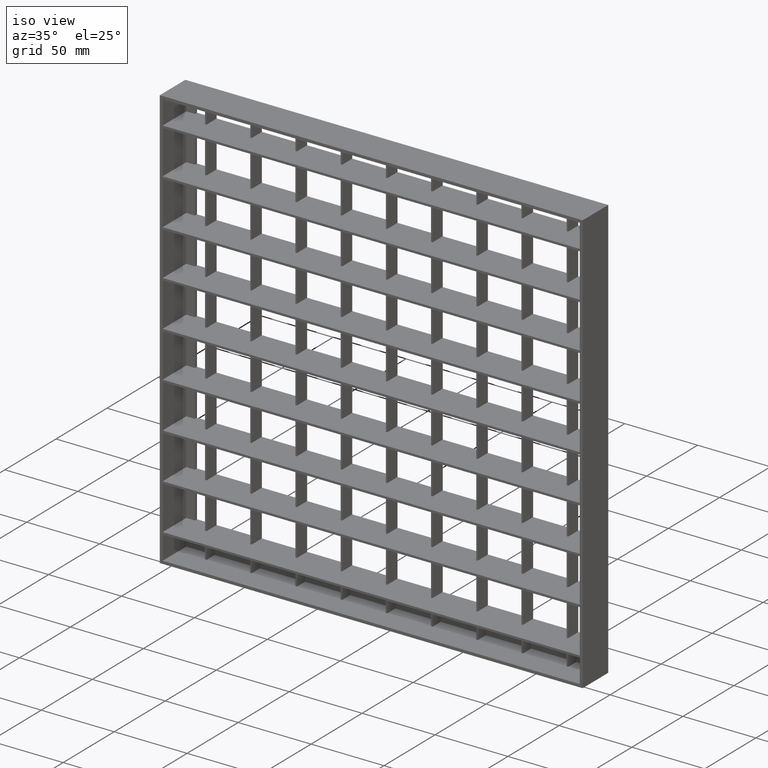
[diagram: clean part render]
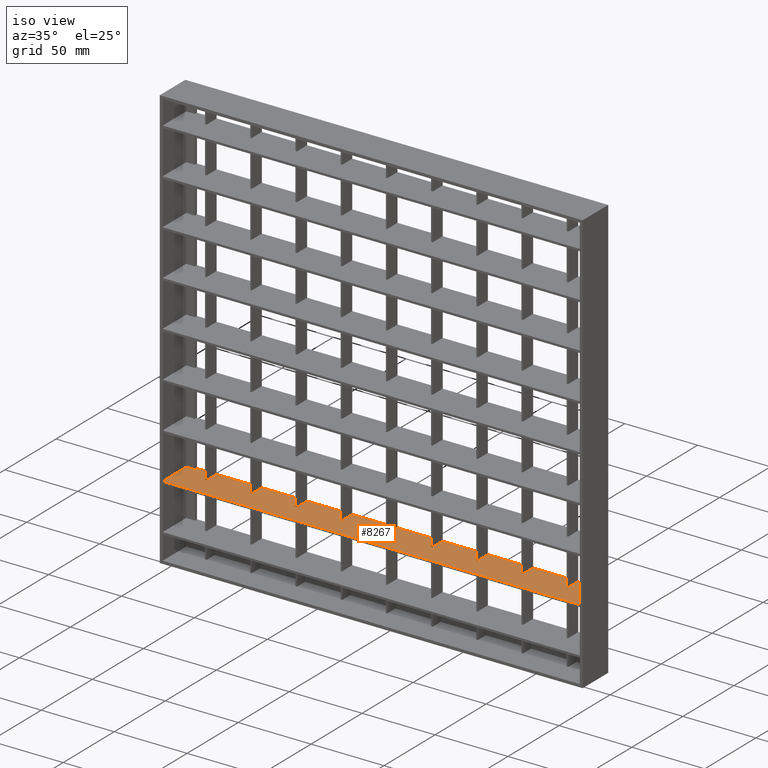
[diagram: same view with one face highlighted and labeled with its STEP entity id]
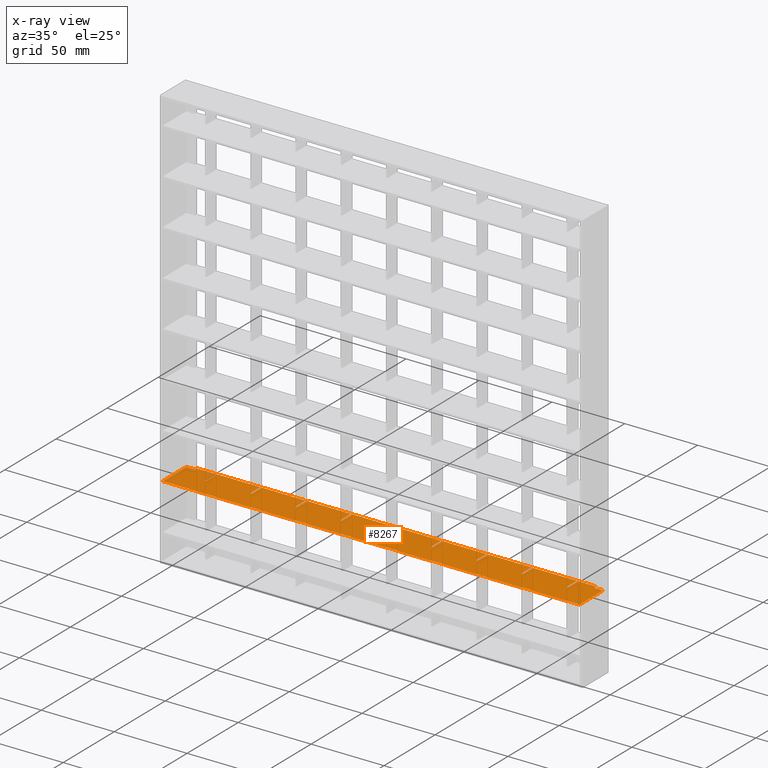
[diagram: x-ray of the same camera — body ghosted, the highlighted face saturated]
A machine part, iso view. The second image highlights one B-rep face of the part: STEP entity #8267.
The next image is the same camera in x-ray: the body ghosted, the highlighted face saturated — about 0% of this face is hidden behind the body in this view.
In plain terms, the highlighted planar face has unit normal (0, 0, -1).
Its self-contained STEP definition (entity closure, byte-faithful):
#64 = ORIENTED_EDGE ( 'NONE', *, *, #8978, .T. ) ;
#104 = DIRECTION ( 'NONE',  ( -1.000000000000000000, -4.336808689942014300E-016, 0.0000000000000000000 ) ) ;
#105 = VERTEX_POINT ( 'NONE', #1149 ) ;
#128 = DIRECTION ( 'NONE',  ( 0.0000000000000000000, -1.000000000000000000, 0.0000000000000000000 ) ) ;
#165 = VERTEX_POINT ( 'NONE', #8369 ) ;
#200 = VERTEX_POINT ( 'NONE', #13305 ) ;
#221 = DIRECTION ( 'NONE',  ( 8.673617379884035500E-016, -1.000000000000000000, 0.0000000000000000000 ) ) ;
#263 = VERTEX_POINT ( 'NONE', #9714 ) ;
#334 = ORIENTED_EDGE ( 'NONE', *, *, #12524, .F. ) ;
#378 = DIRECTION ( 'NONE',  ( -1.000000000000000000, -3.061616997868382600E-016, 0.0000000000000000000 ) ) ;
#400 = LINE ( 'NONE', #10715, #13838 ) ;
#456 = CARTESIAN_POINT ( 'NONE',  ( 2.000000000000002700, -12.50000000000000000, -238.7499999999997200 ) ) ;
#487 = VERTEX_POINT ( 'NONE', #7725 ) ;
#493 = DIRECTION ( 'NONE',  ( 0.0000000000000000000, 1.000000000000000000, 0.0000000000000000000 ) ) ;
#519 = VECTOR ( 'NONE', #14663, 1000.000000000000000 ) ;
#539 = LINE ( 'NONE', #3820, #723 ) ;
#545 = EDGE_CURVE ( 'NONE', #8141, #1038, #5117, .T. ) ;
#598 = CARTESIAN_POINT ( 'NONE',  ( 176.5000000000001100, 12.50000000000008200, -238.7499999999996900 ) ) ;
#685 = DIRECTION ( 'NONE',  ( 0.0000000000000000000, 1.000000000000000000, 0.0000000000000000000 ) ) ;
#723 = VECTOR ( 'NONE', #5018, 1000.000000000000000 ) ;
#738 = VECTOR ( 'NONE', #6129, 1000.000000000000000 ) ;
#755 = ORIENTED_EDGE ( 'NONE', *, *, #7063, .T. ) ;
#844 = LINE ( 'NONE', #6459, #6643 ) ;
#940 = CARTESIAN_POINT ( 'NONE',  ( 268.5000000000001100, -12.49999999999987700, -238.7499999999996900 ) ) ;
#995 = CARTESIAN_POINT ( 'NONE',  ( 313.0449595727363300, 2.500000000000075100, -238.7499999999996900 ) ) ;
#996 = DIRECTION ( 'NONE',  ( -1.000000000000000000, -3.061616997868382600E-016, 0.0000000000000000000 ) ) ;
#1028 = CARTESIAN_POINT ( 'NONE',  ( 21.49999999999996400, 12.50000000000003600, -238.7499999999996900 ) ) ;
#1038 = VERTEX_POINT ( 'NONE', #13929 ) ;
#1149 = CARTESIAN_POINT ( 'NONE',  ( 82.49999999999995700, 2.500000000000000900, -238.7499999999996900 ) ) ;
#1297 = ORIENTED_EDGE ( 'NONE', *, *, #11434, .F. ) ;
#1302 = ORIENTED_EDGE ( 'NONE', *, *, #9888, .F. ) ;
#1361 = VERTEX_POINT ( 'NONE', #10086 ) ;
#1406 = LINE ( 'NONE', #15493, #12972 ) ;
#1446 = CARTESIAN_POINT ( 'NONE',  ( 21.49999999999996400, -12.49999999999987700, -238.7499999999996900 ) ) ;
#1467 = VECTOR ( 'NONE', #2571, 1000.000000000000000 ) ;
#1477 = CARTESIAN_POINT ( 'NONE',  ( 313.0449595727363300, 12.50000000000012400, -238.7499999999996900 ) ) ;
#1484 = ORIENTED_EDGE ( 'NONE', *, *, #2595, .T. ) ;
#1485 = VECTOR ( 'NONE', #11626, 1000.000000000000000 ) ;
#1513 = CARTESIAN_POINT ( 'NONE',  ( 313.0449595727363300, 2.499999999999955600, -238.7499999999996900 ) ) ;
#1572 = ORIENTED_EDGE ( 'NONE', *, *, #5763, .F. ) ;
#1628 = VERTEX_POINT ( 'NONE', #15328 ) ;
#1693 = CARTESIAN_POINT ( 'NONE',  ( 7.999999999999992900, 10.50000000000000500, -238.7499999999996900 ) ) ;
#1772 = CARTESIAN_POINT ( 'NONE',  ( 8.000000000000007100, 12.50000000000003000, -238.7499999999996900 ) ) ;
#1795 = DIRECTION ( 'NONE',  ( 8.673617379884037400E-016, 1.000000000000000000, 0.0000000000000000000 ) ) ;
#1842 = LINE ( 'NONE', #1513, #1467 ) ;
#1966 = ORIENTED_EDGE ( 'NONE', *, *, #6527, .F. ) ;
#2019 = LINE ( 'NONE', #15340, #7251 ) ;
#2073 = DIRECTION ( 'NONE',  ( 0.0000000000000000000, 1.000000000000000000, 0.0000000000000000000 ) ) ;
#2158 = LINE ( 'NONE', #14911, #7957 ) ;
#2257 = LINE ( 'NONE', #9845, #738 ) ;
#2287 = ORIENTED_EDGE ( 'NONE', *, *, #12337, .T. ) ;
#2311 = CARTESIAN_POINT ( 'NONE',  ( 313.0449595727363300, 2.500000000000128800, -238.7499999999996900 ) ) ;
#2388 = ORIENTED_EDGE ( 'NONE', *, *, #13463, .T. ) ;
#2471 = DIRECTION ( 'NONE',  ( 0.0000000000000000000, 1.000000000000000000, 0.0000000000000000000 ) ) ;
#2547 = CARTESIAN_POINT ( 'NONE',  ( 206.5000000000001100, -12.49999999999987700, -238.7499999999996900 ) ) ;
#2571 = DIRECTION ( 'NONE',  ( 1.000000000000000000, -4.336808689942014300E-016, 0.0000000000000000000 ) ) ;
#2595 = EDGE_CURVE ( 'NONE', #7277, #263, #3378, .T. ) ;
#2632 = AXIS2_PLACEMENT_3D ( 'NONE', #6768, #12601, #5531 ) ;
#2637 = LINE ( 'NONE', #2957, #7862 ) ;
#2644 = VERTEX_POINT ( 'NONE', #12888 ) ;
#2806 = EDGE_CURVE ( 'NONE', #13791, #12817, #3279, .T. ) ;
#2882 = EDGE_CURVE ( 'NONE', #1628, #14320, #400, .T. ) ;
#2957 = CARTESIAN_POINT ( 'NONE',  ( 82.49999999999995700, -12.49999999999987700, -238.7499999999996900 ) ) ;
#2992 = CARTESIAN_POINT ( 'NONE',  ( 313.0449595727363300, 12.50000000000012400, -238.7499999999996900 ) ) ;
#3025 = LINE ( 'NONE', #1446, #8628 ) ;
#3136 = CARTESIAN_POINT ( 'NONE',  ( 114.4999999999999600, 12.50000000000006400, -238.7499999999996900 ) ) ;
#3186 = CARTESIAN_POINT ( 'NONE',  ( 237.5000000000001400, 2.500000000000002200, -238.7499999999996900 ) ) ;
#3211 = VERTEX_POINT ( 'NONE', #1772 ) ;
#3279 = LINE ( 'NONE', #9627, #12405 ) ;
#3281 = LINE ( 'NONE', #995, #12783 ) ;
#3327 = LINE ( 'NONE', #14775, #519 ) ;
#3344 = ORIENTED_EDGE ( 'NONE', *, *, #9768, .F. ) ;
#3356 = ORIENTED_EDGE ( 'NONE', *, *, #10378, .F. ) ;
#3378 = LINE ( 'NONE', #5824, #13074 ) ;
#3499 = VECTOR ( 'NONE', #14091, 1000.000000000000000 ) ;
#3548 = EDGE_CURVE ( 'NONE', #165, #12351, #12520, .T. ) ;
#3683 = VERTEX_POINT ( 'NONE', #10689 ) ;
#3690 = EDGE_CURVE ( 'NONE', #3683, #9844, #14612, .T. ) ;
#3732 = ORIENTED_EDGE ( 'NONE', *, *, #11945, .T. ) ;
#3803 = EDGE_CURVE ( 'NONE', #11843, #5564, #8997, .T. ) ;
#3820 = CARTESIAN_POINT ( 'NONE',  ( 2.000000000000002700, -12.50000000000000000, -238.7499999999996900 ) ) ;
#3850 = ORIENTED_EDGE ( 'NONE', *, *, #8284, .T. ) ;
#3870 = EDGE_CURVE ( 'NONE', #105, #165, #2637, .T. ) ;
#3895 = CARTESIAN_POINT ( 'NONE',  ( 313.0449595727363300, 12.50000000000012400, -238.7499999999996900 ) ) ;
#4060 = LINE ( 'NONE', #12948, #9487 ) ;
#4089 = DIRECTION ( 'NONE',  ( -1.000000000000000000, -3.061616997868382600E-016, 0.0000000000000000000 ) ) ;
#4213 = EDGE_CURVE ( 'NONE', #7277, #7131, #10842, .T. ) ;
#4290 = VERTEX_POINT ( 'NONE', #15290 ) ;
#4335 = DIRECTION ( 'NONE',  ( -1.000000000000000000, -3.061616997868382600E-016, 0.0000000000000000000 ) ) ;
#4340 = CARTESIAN_POINT ( 'NONE',  ( 313.0449595727363300, 2.500000000000088800, -238.7499999999996900 ) ) ;
#4361 = ORIENTED_EDGE ( 'NONE', *, *, #4213, .F. ) ;
#4386 = CARTESIAN_POINT ( 'NONE',  ( 2.000000000000002700, 10.50000000000000500, -238.7499999999996900 ) ) ;
#4423 = EDGE_CURVE ( 'NONE', #13172, #487, #4683, .T. ) ;
#4643 = CARTESIAN_POINT ( 'NONE',  ( 237.5000000000001400, 12.50000000000010100, -238.7499999999996900 ) ) ;
#4647 = DIRECTION ( 'NONE',  ( -1.000000000000000000, -3.061616997868382600E-016, 0.0000000000000000000 ) ) ;
#4660 = VECTOR ( 'NONE', #9634, 1000.000000000000000 ) ;
#4672 = EDGE_CURVE ( 'NONE', #12624, #2644, #1842, .T. ) ;
#4683 = LINE ( 'NONE', #8269, #8781 ) ;
#4731 = VERTEX_POINT ( 'NONE', #14723 ) ;
#4746 = ORIENTED_EDGE ( 'NONE', *, *, #10562, .F. ) ;
#4756 = EDGE_CURVE ( 'NONE', #1361, #105, #3327, .T. ) ;
#4769 = CARTESIAN_POINT ( 'NONE',  ( 288.0000000000000000, -12.49999999999997300, -238.7499999999996900 ) ) ;
#4876 = VERTEX_POINT ( 'NONE', #5852 ) ;
#4943 = EDGE_CURVE ( 'NONE', #13418, #11609, #2019, .T. ) ;
#4973 = LINE ( 'NONE', #4340, #6437 ) ;
#5018 = DIRECTION ( 'NONE',  ( 0.0000000000000000000, 1.000000000000000000, 0.0000000000000000000 ) ) ;
#5027 = ORIENTED_EDGE ( 'NONE', *, *, #10372, .T. ) ;
#5043 = VECTOR ( 'NONE', #12843, 1000.000000000000000 ) ;
#5074 = DIRECTION ( 'NONE',  ( -1.000000000000000000, -3.061616997868382600E-016, 0.0000000000000000000 ) ) ;
#5080 = VECTOR ( 'NONE', #14923, 1000.000000000000000 ) ;
#5117 = LINE ( 'NONE', #13913, #6604 ) ;
#5154 = ORIENTED_EDGE ( 'NONE', *, *, #15021, .T. ) ;
#5165 = VERTEX_POINT ( 'NONE', #14739 ) ;
#5241 = VERTEX_POINT ( 'NONE', #456 ) ;
#5314 = VECTOR ( 'NONE', #7620, 1000.000000000000000 ) ;
#5332 = VECTOR ( 'NONE', #5074, 1000.000000000000000 ) ;
#5383 = DIRECTION ( 'NONE',  ( 0.0000000000000000000, -1.000000000000000000, 0.0000000000000000000 ) ) ;
#5437 = LINE ( 'NONE', #7605, #9176 ) ;
#5531 = DIRECTION ( 'NONE',  ( -1.000000000000000000, 0.0000000000000000000, -0.0000000000000000000 ) ) ;
#5564 = VERTEX_POINT ( 'NONE', #1028 ) ;
#5647 = VERTEX_POINT ( 'NONE', #15368 ) ;
#5762 = VERTEX_POINT ( 'NONE', #8545 ) ;
#5763 = EDGE_CURVE ( 'NONE', #4731, #12624, #12440, .T. ) ;
#5802 = DIRECTION ( 'NONE',  ( -1.000000000000000000, -4.336808689942014300E-016, 0.0000000000000000000 ) ) ;
#5824 = CARTESIAN_POINT ( 'NONE',  ( 313.0449595727363300, 12.50000000000012400, -238.7499999999996900 ) ) ;
#5852 = CARTESIAN_POINT ( 'NONE',  ( 20.49999999999996400, 12.50000000000000200, -238.7499999999996900 ) ) ;
#5905 = CARTESIAN_POINT ( 'NONE',  ( 207.5000000000001400, 12.50000000000009100, -238.7499999999996900 ) ) ;
#5934 = CARTESIAN_POINT ( 'NONE',  ( 145.4999999999999700, 2.500000000000002200, -238.7499999999996900 ) ) ;
#6005 = LINE ( 'NONE', #13390, #12149 ) ;
#6038 = VERTEX_POINT ( 'NONE', #7758 ) ;
#6088 = CARTESIAN_POINT ( 'NONE',  ( 176.5000000000001100, -12.49999999999987700, -238.7499999999996900 ) ) ;
#6129 = DIRECTION ( 'NONE',  ( 1.000000000000000000, -4.336808689942014300E-016, 0.0000000000000000000 ) ) ;
#6174 = EDGE_CURVE ( 'NONE', #6038, #5647, #4060, .T. ) ;
#6437 = VECTOR ( 'NONE', #7839, 1000.000000000000000 ) ;
#6459 = CARTESIAN_POINT ( 'NONE',  ( 52.49999999999993600, -12.49999999999987700, -238.7499999999996900 ) ) ;
#6465 = CARTESIAN_POINT ( 'NONE',  ( 51.49999999999996400, 12.50000000000000200, -238.7499999999996900 ) ) ;
#6527 = EDGE_CURVE ( 'NONE', #13199, #11916, #2158, .T. ) ;
#6554 = CARTESIAN_POINT ( 'NONE',  ( 175.5000000000001100, 12.50000000000008200, -238.7499999999996900 ) ) ;
#6604 = VECTOR ( 'NONE', #9234, 1000.000000000000000 ) ;
#6643 = VECTOR ( 'NONE', #14892, 1000.000000000000000 ) ;
#6656 = ORIENTED_EDGE ( 'NONE', *, *, #10743, .T. ) ;
#6658 = LINE ( 'NONE', #940, #3499 ) ;
#6683 = CARTESIAN_POINT ( 'NONE',  ( 207.5000000000001400, -12.49999999999987700, -238.7499999999996900 ) ) ;
#6688 = ORIENTED_EDGE ( 'NONE', *, *, #545, .T. ) ;
#6737 = VECTOR ( 'NONE', #4647, 1000.000000000000000 ) ;
#6768 = CARTESIAN_POINT ( 'NONE',  ( 313.0449595727363300, -12.49999999999987700, -238.7499999999996900 ) ) ;
#6945 = VERTEX_POINT ( 'NONE', #13302 ) ;
#6946 = VECTOR ( 'NONE', #1795, 1000.000000000000000 ) ;
#7063 = EDGE_CURVE ( 'NONE', #263, #13340, #8323, .T. ) ;
#7131 = VERTEX_POINT ( 'NONE', #14571 ) ;
#7164 = DIRECTION ( 'NONE',  ( 0.0000000000000000000, -1.000000000000000000, 0.0000000000000000000 ) ) ;
#7191 = LINE ( 'NONE', #9136, #13907 ) ;
#7251 = VECTOR ( 'NONE', #996, 1000.000000000000000 ) ;
#7277 = VERTEX_POINT ( 'NONE', #6554 ) ;
#7329 = ORIENTED_EDGE ( 'NONE', *, *, #11077, .F. ) ;
#7436 = DIRECTION ( 'NONE',  ( -1.000000000000000000, -3.061616997868382600E-016, 0.0000000000000000000 ) ) ;
#7495 = ORIENTED_EDGE ( 'NONE', *, *, #11776, .F. ) ;
#7605 = CARTESIAN_POINT ( 'NONE',  ( 313.0449595727363300, 12.50000000000012400, -238.7499999999996900 ) ) ;
#7620 = DIRECTION ( 'NONE',  ( 0.0000000000000000000, -1.000000000000000000, 0.0000000000000000000 ) ) ;
#7703 = ORIENTED_EDGE ( 'NONE', *, *, #2806, .T. ) ;
#7725 = CARTESIAN_POINT ( 'NONE',  ( 238.5000000000001700, 12.50000000000010100, -238.7499999999996900 ) ) ;
#7754 = FACE_OUTER_BOUND ( 'NONE', #12838, .T. ) ;
#7758 = CARTESIAN_POINT ( 'NONE',  ( 269.5000000000000600, 2.500000000000002200, -238.7499999999996900 ) ) ;
#7837 = ORIENTED_EDGE ( 'NONE', *, *, #4943, .T. ) ;
#7839 = DIRECTION ( 'NONE',  ( -1.000000000000000000, -4.336808689942014300E-016, 0.0000000000000000000 ) ) ;
#7862 = VECTOR ( 'NONE', #493, 1000.000000000000000 ) ;
#7868 = LINE ( 'NONE', #2992, #5080 ) ;
#7901 = VERTEX_POINT ( 'NONE', #4769 ) ;
#7927 = CARTESIAN_POINT ( 'NONE',  ( 282.0000000000000000, 10.50000000000000500, -238.7499999999996900 ) ) ;
#7957 = VECTOR ( 'NONE', #11271, 1000.000000000000000 ) ;
#7963 = ORIENTED_EDGE ( 'NONE', *, *, #8028, .T. ) ;
#8028 = EDGE_CURVE ( 'NONE', #7901, #11916, #14103, .T. ) ;
#8038 = VERTEX_POINT ( 'NONE', #13476 ) ;
#8079 = VECTOR ( 'NONE', #12485, 1000.000000000000000 ) ;
#8141 = VERTEX_POINT ( 'NONE', #11214 ) ;
#8208 = VERTEX_POINT ( 'NONE', #4386 ) ;
#8223 = LINE ( 'NONE', #9320, #1485 ) ;
#8256 = VECTOR ( 'NONE', #10739, 1000.000000000000000 ) ;
#8267 = ADVANCED_FACE ( 'NONE', ( #7754 ), #13925, .F. ) ;
#8269 = CARTESIAN_POINT ( 'NONE',  ( 238.5000000000001700, -12.49999999999987700, -238.7499999999996900 ) ) ;
#8284 = EDGE_CURVE ( 'NONE', #4876, #3211, #9058, .T. ) ;
#8323 = LINE ( 'NONE', #14674, #5314 ) ;
#8369 = CARTESIAN_POINT ( 'NONE',  ( 82.49999999999995700, 12.50000000000000200, -238.7499999999996900 ) ) ;
#8389 = CARTESIAN_POINT ( 'NONE',  ( 237.5000000000001400, -12.49999999999987700, -238.7499999999996900 ) ) ;
#8516 = VECTOR ( 'NONE', #13365, 1000.000000000000000 ) ;
#8542 = VECTOR ( 'NONE', #11475, 1000.000000000000000 ) ;
#8545 = CARTESIAN_POINT ( 'NONE',  ( 21.49999999999996400, 2.500000000000002200, -238.7499999999996900 ) ) ;
#8589 = VECTOR ( 'NONE', #685, 1000.000000000000000 ) ;
#8596 = DIRECTION ( 'NONE',  ( -1.000000000000000000, -3.061616997868382600E-016, 0.0000000000000000000 ) ) ;
#8612 = CARTESIAN_POINT ( 'NONE',  ( 268.5000000000001100, 12.50000000000011000, -238.7499999999996900 ) ) ;
#8628 = VECTOR ( 'NONE', #14451, 1000.000000000000000 ) ;
#8632 = CARTESIAN_POINT ( 'NONE',  ( 83.49999999999995700, -12.49999999999987700, -238.7499999999996900 ) ) ;
#8781 = VECTOR ( 'NONE', #2471, 1000.000000000000000 ) ;
#8866 = VECTOR ( 'NONE', #11702, 1000.000000000000000 ) ;
#8978 = EDGE_CURVE ( 'NONE', #6945, #8038, #13886, .T. ) ;
#8990 = CARTESIAN_POINT ( 'NONE',  ( 313.0449595727363300, 12.50000000000012400, -238.7499999999996900 ) ) ;
#8991 = LINE ( 'NONE', #3895, #11381 ) ;
#8997 = LINE ( 'NONE', #13501, #11030 ) ;
#9058 = LINE ( 'NONE', #10277, #9999 ) ;
#9067 = DIRECTION ( 'NONE',  ( 1.000000000000000000, -4.336808689942014300E-016, 0.0000000000000000000 ) ) ;
#9117 = LINE ( 'NONE', #8632, #10610 ) ;
#9136 = CARTESIAN_POINT ( 'NONE',  ( 20.49999999999996400, -12.49999999999987700, -238.7499999999996900 ) ) ;
#9173 = CARTESIAN_POINT ( 'NONE',  ( 144.4999999999999700, -12.49999999999987700, -238.7499999999996900 ) ) ;
#9176 = VECTOR ( 'NONE', #378, 1000.000000000000000 ) ;
#9204 = ORIENTED_EDGE ( 'NONE', *, *, #13089, .T. ) ;
#9217 = DIRECTION ( 'NONE',  ( 0.0000000000000000000, 1.000000000000000000, 0.0000000000000000000 ) ) ;
#9234 = DIRECTION ( 'NONE',  ( 0.0000000000000000000, 1.000000000000000000, 0.0000000000000000000 ) ) ;
#9278 = ORIENTED_EDGE ( 'NONE', *, *, #11078, .T. ) ;
#9305 = ORIENTED_EDGE ( 'NONE', *, *, #4423, .F. ) ;
#9320 = CARTESIAN_POINT ( 'NONE',  ( 313.0449595727363300, -12.49999999999987700, -238.7499999999996900 ) ) ;
#9393 = ORIENTED_EDGE ( 'NONE', *, *, #11637, .T. ) ;
#9399 = CARTESIAN_POINT ( 'NONE',  ( 313.0449595727363300, 12.50000000000012400, -238.7499999999996900 ) ) ;
#9487 = VECTOR ( 'NONE', #9217, 1000.000000000000000 ) ;
#9627 = CARTESIAN_POINT ( 'NONE',  ( 114.4999999999999600, -12.49999999999987700, -238.7499999999996900 ) ) ;
#9634 = DIRECTION ( 'NONE',  ( 0.0000000000000000000, -1.000000000000000000, 0.0000000000000000000 ) ) ;
#9635 = EDGE_CURVE ( 'NONE', #5564, #5762, #3025, .T. ) ;
#9714 = CARTESIAN_POINT ( 'NONE',  ( 145.4999999999999700, 12.50000000000007100, -238.7499999999996900 ) ) ;
#9768 = EDGE_CURVE ( 'NONE', #8208, #10544, #14428, .T. ) ;
#9844 = VERTEX_POINT ( 'NONE', #598 ) ;
#9845 = CARTESIAN_POINT ( 'NONE',  ( 313.0449595727363300, 2.499999999999969400, -238.7499999999996900 ) ) ;
#9888 = EDGE_CURVE ( 'NONE', #5165, #6038, #9930, .T. ) ;
#9930 = LINE ( 'NONE', #13709, #11219 ) ;
#9999 = VECTOR ( 'NONE', #4335, 1000.000000000000000 ) ;
#10009 = CARTESIAN_POINT ( 'NONE',  ( 7.999999999999992900, 10.50000000000000500, -238.7499999999996900 ) ) ;
#10066 = CARTESIAN_POINT ( 'NONE',  ( 2.000000000000002700, 10.50000000000000500, -238.7499999999996900 ) ) ;
#10085 = ORIENTED_EDGE ( 'NONE', *, *, #15537, .T. ) ;
#10086 = CARTESIAN_POINT ( 'NONE',  ( 83.49999999999995700, 2.500000000000002200, -238.7499999999996900 ) ) ;
#10105 = ORIENTED_EDGE ( 'NONE', *, *, #3803, .T. ) ;
#10218 = LINE ( 'NONE', #10395, #8542 ) ;
#10277 = CARTESIAN_POINT ( 'NONE',  ( 313.0449595727363300, 12.50000000000012400, -238.7499999999996900 ) ) ;
#10371 = CARTESIAN_POINT ( 'NONE',  ( 238.5000000000001700, 2.500000000000001800, -238.7499999999996900 ) ) ;
#10372 = EDGE_CURVE ( 'NONE', #8038, #13791, #7868, .T. ) ;
#10378 = EDGE_CURVE ( 'NONE', #10544, #3211, #14232, .T. ) ;
#10395 = CARTESIAN_POINT ( 'NONE',  ( 313.0449595727363300, 2.499999999999943200, -238.7499999999996900 ) ) ;
#10544 = VERTEX_POINT ( 'NONE', #10009 ) ;
#10562 = EDGE_CURVE ( 'NONE', #4290, #13199, #6005, .T. ) ;
#10610 = VECTOR ( 'NONE', #5383, 1000.000000000000000 ) ;
#10689 = CARTESIAN_POINT ( 'NONE',  ( 176.5000000000001100, 2.500000000000002700, -238.7499999999996900 ) ) ;
#10715 = CARTESIAN_POINT ( 'NONE',  ( 313.0449595727363300, 2.500000000000115000, -238.7499999999996900 ) ) ;
#10739 = DIRECTION ( 'NONE',  ( 0.0000000000000000000, 1.000000000000000000, 0.0000000000000000000 ) ) ;
#10743 = EDGE_CURVE ( 'NONE', #4290, #5647, #5437, .T. ) ;
#10842 = LINE ( 'NONE', #15407, #5043 ) ;
#10935 = ORIENTED_EDGE ( 'NONE', *, *, #11462, .F. ) ;
#11030 = VECTOR ( 'NONE', #8596, 1000.000000000000000 ) ;
#11077 = EDGE_CURVE ( 'NONE', #13797, #13172, #2257, .T. ) ;
#11078 = EDGE_CURVE ( 'NONE', #1038, #14158, #8991, .T. ) ;
#11096 = CARTESIAN_POINT ( 'NONE',  ( 83.49999999999995700, 12.50000000000005300, -238.7499999999996900 ) ) ;
#11126 = ORIENTED_EDGE ( 'NONE', *, *, #12658, .F. ) ;
#11194 = LINE ( 'NONE', #6683, #8589 ) ;
#11206 = CARTESIAN_POINT ( 'NONE',  ( 287.9999999999999400, 10.50000000000000500, -238.7499999999996900 ) ) ;
#11214 = CARTESIAN_POINT ( 'NONE',  ( 113.4999999999999600, 2.500000000000002200, -238.7499999999996900 ) ) ;
#11219 = VECTOR ( 'NONE', #9067, 1000.000000000000000 ) ;
#11228 = ORIENTED_EDGE ( 'NONE', *, *, #4756, .T. ) ;
#11271 = DIRECTION ( 'NONE',  ( 1.000000000000000000, 0.0000000000000000000, 0.0000000000000000000 ) ) ;
#11332 = ORIENTED_EDGE ( 'NONE', *, *, #2882, .T. ) ;
#11351 = LINE ( 'NONE', #8389, #4660 ) ;
#11373 = CARTESIAN_POINT ( 'NONE',  ( 52.49999999999999300, 12.50000000000004400, -238.7499999999996900 ) ) ;
#11381 = VECTOR ( 'NONE', #7436, 1000.000000000000000 ) ;
#11434 = EDGE_CURVE ( 'NONE', #2644, #11609, #11194, .T. ) ;
#11462 = EDGE_CURVE ( 'NONE', #7901, #5241, #8223, .T. ) ;
#11475 = DIRECTION ( 'NONE',  ( 1.000000000000000000, -4.336808689942014300E-016, 0.0000000000000000000 ) ) ;
#11507 = ORIENTED_EDGE ( 'NONE', *, *, #3870, .T. ) ;
#11609 = VERTEX_POINT ( 'NONE', #5905 ) ;
#11626 = DIRECTION ( 'NONE',  ( -1.000000000000000000, -3.061616997868382600E-016, 0.0000000000000000000 ) ) ;
#11637 = EDGE_CURVE ( 'NONE', #5762, #200, #12475, .T. ) ;
#11678 = DIRECTION ( 'NONE',  ( 0.0000000000000000000, 1.000000000000000000, 0.0000000000000000000 ) ) ;
#11702 = DIRECTION ( 'NONE',  ( 0.0000000000000000000, 1.000000000000000000, 0.0000000000000000000 ) ) ;
#11721 = VECTOR ( 'NONE', #14366, 1000.000000000000000 ) ;
#11776 = EDGE_CURVE ( 'NONE', #5241, #8208, #539, .T. ) ;
#11843 = VERTEX_POINT ( 'NONE', #6465 ) ;
#11916 = VERTEX_POINT ( 'NONE', #11206 ) ;
#11945 = EDGE_CURVE ( 'NONE', #15301, #487, #13790, .T. ) ;
#12139 = EDGE_CURVE ( 'NONE', #13418, #13797, #11351, .T. ) ;
#12149 = VECTOR ( 'NONE', #221, 1000.000000000000000 ) ;
#12281 = ORIENTED_EDGE ( 'NONE', *, *, #13752, .T. ) ;
#12337 = EDGE_CURVE ( 'NONE', #14158, #1361, #9117, .T. ) ;
#12351 = VERTEX_POINT ( 'NONE', #11373 ) ;
#12405 = VECTOR ( 'NONE', #7164, 1000.000000000000000 ) ;
#12440 = LINE ( 'NONE', #2547, #14913 ) ;
#12475 = LINE ( 'NONE', #2311, #11721 ) ;
#12485 = DIRECTION ( 'NONE',  ( 1.000000000000000000, 0.0000000000000000000, 0.0000000000000000000 ) ) ;
#12520 = LINE ( 'NONE', #9399, #6737 ) ;
#12524 = EDGE_CURVE ( 'NONE', #7131, #3683, #10218, .T. ) ;
#12581 = LINE ( 'NONE', #1477, #5332 ) ;
#12601 = DIRECTION ( 'NONE',  ( 0.0000000000000000000, 0.0000000000000000000, -1.000000000000000000 ) ) ;
#12624 = VERTEX_POINT ( 'NONE', #14201 ) ;
#12658 = EDGE_CURVE ( 'NONE', #15301, #5165, #6658, .T. ) ;
#12662 = ORIENTED_EDGE ( 'NONE', *, *, #3690, .F. ) ;
#12783 = VECTOR ( 'NONE', #5802, 1000.000000000000000 ) ;
#12817 = VERTEX_POINT ( 'NONE', #13197 ) ;
#12838 = EDGE_LOOP ( 'NONE', ( #13001, #1302, #11126, #3732, #9305, #7329, #15153, #7837, #1297, #14387, #1572, #2388, #12662, #334, #4361, #1484, #755, #14065, #64, #5027, #7703, #12281, #6688, #9278, #2287, #11228, #11507, #13080, #9204, #11332, #5154, #10105, #13066, #9393, #10085, #3850, #3356, #3344, #7495, #10935, #7963, #1966, #4746, #6656 ) ) ;
#12843 = DIRECTION ( 'NONE',  ( 0.0000000000000000000, -1.000000000000000000, 0.0000000000000000000 ) ) ;
#12888 = CARTESIAN_POINT ( 'NONE',  ( 207.5000000000001400, 2.500000000000001300, -238.7499999999996900 ) ) ;
#12948 = CARTESIAN_POINT ( 'NONE',  ( 269.5000000000001100, -12.49999999999987700, -238.7499999999996900 ) ) ;
#12972 = VECTOR ( 'NONE', #11678, 1000.000000000000000 ) ;
#13001 = ORIENTED_EDGE ( 'NONE', *, *, #6174, .F. ) ;
#13066 = ORIENTED_EDGE ( 'NONE', *, *, #9635, .T. ) ;
#13074 = VECTOR ( 'NONE', #15412, 1000.000000000000000 ) ;
#13080 = ORIENTED_EDGE ( 'NONE', *, *, #3548, .T. ) ;
#13089 = EDGE_CURVE ( 'NONE', #12351, #1628, #844, .T. ) ;
#13172 = VERTEX_POINT ( 'NONE', #10371 ) ;
#13197 = CARTESIAN_POINT ( 'NONE',  ( 114.4999999999999600, 2.500000000000002200, -238.7499999999996900 ) ) ;
#13199 = VERTEX_POINT ( 'NONE', #7927 ) ;
#13302 = CARTESIAN_POINT ( 'NONE',  ( 144.4999999999999700, 2.500000000000001800, -238.7499999999996900 ) ) ;
#13305 = CARTESIAN_POINT ( 'NONE',  ( 20.49999999999996400, 2.500000000000001800, -238.7499999999996900 ) ) ;
#13340 = VERTEX_POINT ( 'NONE', #5934 ) ;
#13365 = DIRECTION ( 'NONE',  ( 0.0000000000000000000, 1.000000000000000000, 0.0000000000000000000 ) ) ;
#13390 = CARTESIAN_POINT ( 'NONE',  ( 282.0000000000000000, 10.50000000000019200, -238.7499999999996900 ) ) ;
#13418 = VERTEX_POINT ( 'NONE', #4643 ) ;
#13463 = EDGE_CURVE ( 'NONE', #4731, #9844, #12581, .T. ) ;
#13476 = CARTESIAN_POINT ( 'NONE',  ( 144.4999999999999700, 12.50000000000000200, -238.7499999999996900 ) ) ;
#13501 = CARTESIAN_POINT ( 'NONE',  ( 313.0449595727363300, 12.50000000000012400, -238.7499999999996900 ) ) ;
#13528 = CARTESIAN_POINT ( 'NONE',  ( 288.0000000000000000, -12.49999999999987700, -238.7499999999996900 ) ) ;
#13709 = CARTESIAN_POINT ( 'NONE',  ( 313.0449595727363300, 2.499999999999983100, -238.7499999999996900 ) ) ;
#13752 = EDGE_CURVE ( 'NONE', #12817, #8141, #4973, .T. ) ;
#13790 = LINE ( 'NONE', #8990, #15512 ) ;
#13791 = VERTEX_POINT ( 'NONE', #3136 ) ;
#13797 = VERTEX_POINT ( 'NONE', #3186 ) ;
#13838 = VECTOR ( 'NONE', #104, 1000.000000000000000 ) ;
#13886 = LINE ( 'NONE', #9173, #8866 ) ;
#13907 = VECTOR ( 'NONE', #2073, 1000.000000000000000 ) ;
#13913 = CARTESIAN_POINT ( 'NONE',  ( 113.4999999999999600, -12.49999999999987700, -238.7499999999996900 ) ) ;
#13925 = PLANE ( 'NONE',  #2632 ) ;
#13929 = CARTESIAN_POINT ( 'NONE',  ( 113.4999999999999600, 12.50000000000000200, -238.7499999999996900 ) ) ;
#14065 = ORIENTED_EDGE ( 'NONE', *, *, #15062, .T. ) ;
#14091 = DIRECTION ( 'NONE',  ( 0.0000000000000000000, -1.000000000000000000, 0.0000000000000000000 ) ) ;
#14103 = LINE ( 'NONE', #13528, #8516 ) ;
#14158 = VERTEX_POINT ( 'NONE', #11096 ) ;
#14201 = CARTESIAN_POINT ( 'NONE',  ( 206.5000000000001100, 2.500000000000002200, -238.7499999999996900 ) ) ;
#14232 = LINE ( 'NONE', #1693, #6946 ) ;
#14320 = VERTEX_POINT ( 'NONE', #15133 ) ;
#14366 = DIRECTION ( 'NONE',  ( -1.000000000000000000, -4.336808689942014300E-016, 0.0000000000000000000 ) ) ;
#14387 = ORIENTED_EDGE ( 'NONE', *, *, #4672, .F. ) ;
#14428 = LINE ( 'NONE', #10066, #8079 ) ;
#14451 = DIRECTION ( 'NONE',  ( 0.0000000000000000000, -1.000000000000000000, 0.0000000000000000000 ) ) ;
#14571 = CARTESIAN_POINT ( 'NONE',  ( 175.5000000000001100, 2.500000000000002200, -238.7499999999996900 ) ) ;
#14612 = LINE ( 'NONE', #6088, #8256 ) ;
#14663 = DIRECTION ( 'NONE',  ( -1.000000000000000000, -4.336808689942014300E-016, 0.0000000000000000000 ) ) ;
#14674 = CARTESIAN_POINT ( 'NONE',  ( 145.4999999999999700, -12.49999999999987700, -238.7499999999996900 ) ) ;
#14723 = CARTESIAN_POINT ( 'NONE',  ( 206.5000000000001100, 12.50000000000009100, -238.7499999999996900 ) ) ;
#14739 = CARTESIAN_POINT ( 'NONE',  ( 268.5000000000001100, 2.500000000000002200, -238.7499999999996900 ) ) ;
#14775 = CARTESIAN_POINT ( 'NONE',  ( 313.0449595727363300, 2.500000000000101300, -238.7499999999996900 ) ) ;
#14892 = DIRECTION ( 'NONE',  ( 0.0000000000000000000, -1.000000000000000000, 0.0000000000000000000 ) ) ;
#14911 = CARTESIAN_POINT ( 'NONE',  ( 145.0000000000000600, 10.50000000000000500, -238.7499999999996900 ) ) ;
#14913 = VECTOR ( 'NONE', #128, 1000.000000000000000 ) ;
#14923 = DIRECTION ( 'NONE',  ( -1.000000000000000000, -3.061616997868382600E-016, 0.0000000000000000000 ) ) ;
#15021 = EDGE_CURVE ( 'NONE', #14320, #11843, #1406, .T. ) ;
#15062 = EDGE_CURVE ( 'NONE', #13340, #6945, #3281, .T. ) ;
#15133 = CARTESIAN_POINT ( 'NONE',  ( 51.49999999999993600, 2.500000000000001300, -238.7499999999996900 ) ) ;
#15153 = ORIENTED_EDGE ( 'NONE', *, *, #12139, .F. ) ;
#15290 = CARTESIAN_POINT ( 'NONE',  ( 282.0000000000000600, 12.50000000000000700, -238.7499999999996900 ) ) ;
#15301 = VERTEX_POINT ( 'NONE', #8612 ) ;
#15328 = CARTESIAN_POINT ( 'NONE',  ( 52.49999999999993600, 2.500000000000002200, -238.7499999999996900 ) ) ;
#15340 = CARTESIAN_POINT ( 'NONE',  ( 313.0449595727363300, 12.50000000000012400, -238.7499999999996900 ) ) ;
#15368 = CARTESIAN_POINT ( 'NONE',  ( 269.5000000000001100, 12.50000000000011000, -238.7499999999996900 ) ) ;
#15407 = CARTESIAN_POINT ( 'NONE',  ( 175.5000000000001100, -12.49999999999987700, -238.7499999999996900 ) ) ;
#15412 = DIRECTION ( 'NONE',  ( -1.000000000000000000, -3.061616997868382600E-016, 0.0000000000000000000 ) ) ;
#15493 = CARTESIAN_POINT ( 'NONE',  ( 51.49999999999993600, -12.49999999999987700, -238.7499999999996900 ) ) ;
#15512 = VECTOR ( 'NONE', #4089, 1000.000000000000000 ) ;
#15537 = EDGE_CURVE ( 'NONE', #200, #4876, #7191, .T. ) ;